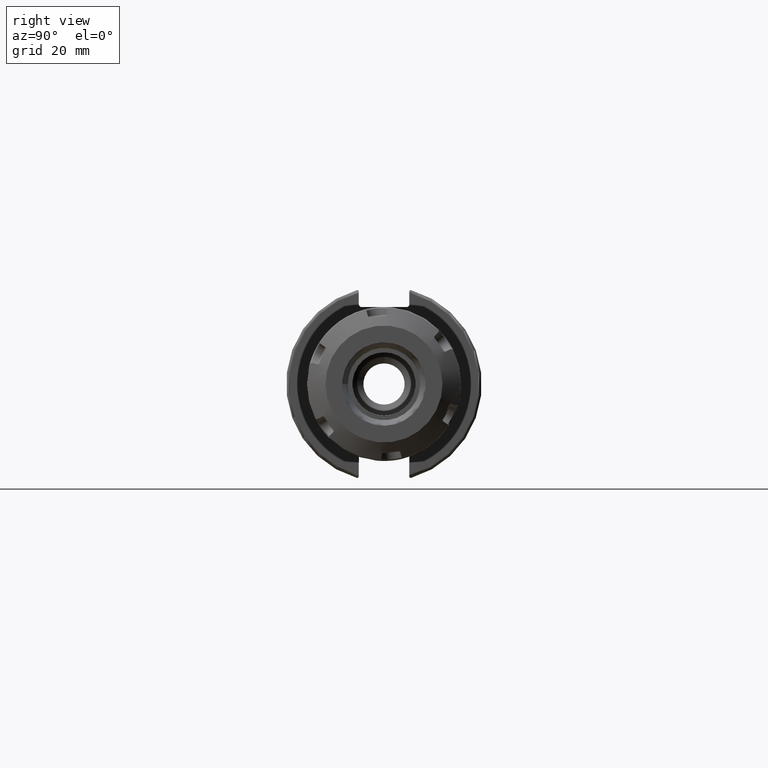
[diagram: clean part render]
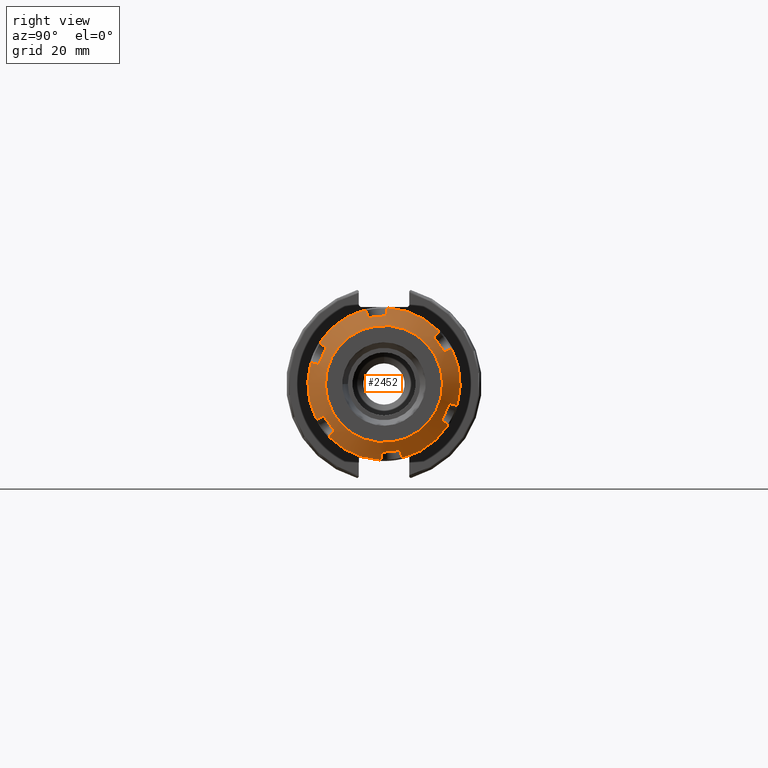
[diagram: same view with one face highlighted and labeled with its STEP entity id]
A machine part, right view. The second image highlights one B-rep face of the part: STEP entity #2452.
In plain terms, the highlighted conical surface has half-angle 60 deg.
Its self-contained STEP definition (entity closure, byte-faithful):
#133=(
BOUNDED_CURVE()
B_SPLINE_CURVE(2,(#4017,#4018,#4019),.UNSPECIFIED.,.F.,.F.)
B_SPLINE_CURVE_WITH_KNOTS((3,3),(3.51476215686957,4.31734241493005),
 .UNSPECIFIED.)
CURVE()
GEOMETRIC_REPRESENTATION_ITEM()
RATIONAL_B_SPLINE_CURVE((1.47709269009182,1.48721867500282,1.47709269009183))
REPRESENTATION_ITEM('')
);
#134=(
BOUNDED_CURVE()
B_SPLINE_CURVE(2,(#4071,#4072,#4073),.UNSPECIFIED.,.F.,.F.)
B_SPLINE_CURVE_WITH_KNOTS((3,3),(3.51476215686976,4.31734241493044),
 .UNSPECIFIED.)
CURVE()
GEOMETRIC_REPRESENTATION_ITEM()
RATIONAL_B_SPLINE_CURVE((1.47709269009192,1.48721867500291,1.47709269009192))
REPRESENTATION_ITEM('')
);
#135=(
BOUNDED_CURVE()
B_SPLINE_CURVE(2,(#4125,#4126,#4127),.UNSPECIFIED.,.F.,.F.)
B_SPLINE_CURVE_WITH_KNOTS((3,3),(3.51476215686984,4.31734241493033),
 .UNSPECIFIED.)
CURVE()
GEOMETRIC_REPRESENTATION_ITEM()
RATIONAL_B_SPLINE_CURVE((1.47709269009183,1.48721867500282,1.47709269009182))
REPRESENTATION_ITEM('')
);
#136=(
BOUNDED_CURVE()
B_SPLINE_CURVE(2,(#4179,#4180,#4181),.UNSPECIFIED.,.F.,.F.)
B_SPLINE_CURVE_WITH_KNOTS((3,3),(3.51476215686957,4.31734241493005),
 .UNSPECIFIED.)
CURVE()
GEOMETRIC_REPRESENTATION_ITEM()
RATIONAL_B_SPLINE_CURVE((1.47709269009182,1.48721867500282,1.47709269009183))
REPRESENTATION_ITEM('')
);
#137=(
BOUNDED_CURVE()
B_SPLINE_CURVE(2,(#4233,#4234,#4235),.UNSPECIFIED.,.F.,.F.)
B_SPLINE_CURVE_WITH_KNOTS((3,3),(3.51476215686976,4.31734241493044),
 .UNSPECIFIED.)
CURVE()
GEOMETRIC_REPRESENTATION_ITEM()
RATIONAL_B_SPLINE_CURVE((1.47709269009192,1.48721867500291,1.47709269009192))
REPRESENTATION_ITEM('')
);
#138=(
BOUNDED_CURVE()
B_SPLINE_CURVE(2,(#4287,#4288,#4289),.UNSPECIFIED.,.F.,.F.)
B_SPLINE_CURVE_WITH_KNOTS((3,3),(3.51476215686984,4.31734241493033),
 .UNSPECIFIED.)
CURVE()
GEOMETRIC_REPRESENTATION_ITEM()
RATIONAL_B_SPLINE_CURVE((1.47709269009183,1.48721867500282,1.47709269009182))
REPRESENTATION_ITEM('')
);
#155=B_SPLINE_CURVE_WITH_KNOTS('',3,(#3993,#3994,#3995,#3996,#3997),
 .UNSPECIFIED.,.F.,.F.,(4,1,4),(0.,0.5,1.),.UNSPECIFIED.);
#156=B_SPLINE_CURVE_WITH_KNOTS('',3,(#3999,#4000,#4001,#4002,#4003,#4004),
 .UNSPECIFIED.,.F.,.F.,(4,1,1,4),(0.,0.3333333333333,0.6666666666667,1.),
 .UNSPECIFIED.);
#157=B_SPLINE_CURVE_WITH_KNOTS('',3,(#4006,#4007,#4008,#4009,#4010,#4011,
#4012,#4013,#4014,#4015),.UNSPECIFIED.,.F.,.F.,(4,2,2,2,4),(0.0021929011140548,
0.0216290017748505,0.0432580035497009,0.0616866380642235,0.0744888904768261),
 .UNSPECIFIED.);
#158=B_SPLINE_CURVE_WITH_KNOTS('',3,(#4021,#4022,#4023,#4024,#4025,#4026,
#4027,#4028,#4029,#4030),.UNSPECIFIED.,.F.,.F.,(4,2,2,2,4),(0.250635890627103,
0.263438143039404,0.281866777553927,0.303495779328777,0.322931879990271),
 .UNSPECIFIED.);
#159=B_SPLINE_CURVE_WITH_KNOTS('',3,(#4032,#4033,#4034,#4035,#4036,#4037),
 .UNSPECIFIED.,.F.,.F.,(4,1,1,4),(0.,0.3333333333333,0.6666666666667,1.),
 .UNSPECIFIED.);
#160=B_SPLINE_CURVE_WITH_KNOTS('',3,(#4039,#4040,#4041,#4042,#4043),
 .UNSPECIFIED.,.F.,.F.,(4,1,4),(0.,0.5,1.),.UNSPECIFIED.);
#161=B_SPLINE_CURVE_WITH_KNOTS('',3,(#4047,#4048,#4049,#4050,#4051),
 .UNSPECIFIED.,.F.,.F.,(4,1,4),(0.,0.5,1.),.UNSPECIFIED.);
#162=B_SPLINE_CURVE_WITH_KNOTS('',3,(#4053,#4054,#4055,#4056,#4057,#4058),
 .UNSPECIFIED.,.F.,.F.,(4,1,1,4),(0.,0.3333333333333,0.6666666666667,1.),
 .UNSPECIFIED.);
#163=B_SPLINE_CURVE_WITH_KNOTS('',3,(#4060,#4061,#4062,#4063,#4064,#4065,
#4066,#4067,#4068,#4069),.UNSPECIFIED.,.F.,.F.,(4,2,2,2,4),(0.00219290111341628,
0.0216290017748504,0.0432580035497007,0.0616866380642232,0.074488890476436),
 .UNSPECIFIED.);
#164=B_SPLINE_CURVE_WITH_KNOTS('',3,(#4075,#4076,#4077,#4078,#4079,#4080,
#4081,#4082,#4083,#4084),.UNSPECIFIED.,.F.,.F.,(4,2,2,2,4),(0.250635890627191,
0.263438143039404,0.281866777553927,0.303495779328777,0.32293187999021),
 .UNSPECIFIED.);
#165=B_SPLINE_CURVE_WITH_KNOTS('',3,(#4086,#4087,#4088,#4089,#4090,#4091),
 .UNSPECIFIED.,.F.,.F.,(4,1,1,4),(0.,0.3333333333333,0.6666666666667,1.),
 .UNSPECIFIED.);
#166=B_SPLINE_CURVE_WITH_KNOTS('',3,(#4093,#4094,#4095,#4096,#4097),
 .UNSPECIFIED.,.F.,.F.,(4,1,4),(0.,0.5,1.),.UNSPECIFIED.);
#167=B_SPLINE_CURVE_WITH_KNOTS('',3,(#4101,#4102,#4103,#4104,#4105),
 .UNSPECIFIED.,.F.,.F.,(4,1,4),(0.,0.5,1.),.UNSPECIFIED.);
#168=B_SPLINE_CURVE_WITH_KNOTS('',3,(#4107,#4108,#4109,#4110,#4111,#4112),
 .UNSPECIFIED.,.F.,.F.,(4,1,1,4),(0.,0.3333333333333,0.6666666666667,1.),
 .UNSPECIFIED.);
#169=B_SPLINE_CURVE_WITH_KNOTS('',3,(#4114,#4115,#4116,#4117,#4118,#4119,
#4120,#4121,#4122,#4123),.UNSPECIFIED.,.F.,.F.,(4,2,2,2,4),(0.00219290111335722,
0.0216290017748503,0.0432580035497006,0.0616866380642232,0.0744888904765242),
 .UNSPECIFIED.);
#170=B_SPLINE_CURVE_WITH_KNOTS('',3,(#4129,#4130,#4131,#4132,#4133,#4134,
#4135,#4136,#4137,#4138),.UNSPECIFIED.,.F.,.F.,(4,2,2,2,4),(0.250635890626801,
0.263438143039404,0.281866777553926,0.303495779328777,0.322931879989572),
 .UNSPECIFIED.);
#171=B_SPLINE_CURVE_WITH_KNOTS('',3,(#4140,#4141,#4142,#4143,#4144,#4145),
 .UNSPECIFIED.,.F.,.F.,(4,1,1,4),(0.,0.3333333333333,0.6666666666667,1.),
 .UNSPECIFIED.);
#172=B_SPLINE_CURVE_WITH_KNOTS('',3,(#4147,#4148,#4149,#4150,#4151),
 .UNSPECIFIED.,.F.,.F.,(4,1,4),(0.,0.5,1.),.UNSPECIFIED.);
#173=B_SPLINE_CURVE_WITH_KNOTS('',3,(#4155,#4156,#4157,#4158,#4159),
 .UNSPECIFIED.,.F.,.F.,(4,1,4),(0.,0.5,1.),.UNSPECIFIED.);
#174=B_SPLINE_CURVE_WITH_KNOTS('',3,(#4161,#4162,#4163,#4164,#4165,#4166),
 .UNSPECIFIED.,.F.,.F.,(4,1,1,4),(0.,0.3333333333333,0.6666666666667,1.),
 .UNSPECIFIED.);
#175=B_SPLINE_CURVE_WITH_KNOTS('',3,(#4168,#4169,#4170,#4171,#4172,#4173,
#4174,#4175,#4176,#4177),.UNSPECIFIED.,.F.,.F.,(4,2,2,2,4),(0.0021929011140548,
0.0216290017748505,0.0432580035497009,0.0616866380642235,0.0744888904768256),
 .UNSPECIFIED.);
#176=B_SPLINE_CURVE_WITH_KNOTS('',3,(#4183,#4184,#4185,#4186,#4187,#4188,
#4189,#4190,#4191,#4192),.UNSPECIFIED.,.F.,.F.,(4,2,2,2,4),(0.250635890627103,
0.263438143039404,0.281866777553927,0.303495779328777,0.322931879990271),
 .UNSPECIFIED.);
#177=B_SPLINE_CURVE_WITH_KNOTS('',3,(#4194,#4195,#4196,#4197,#4198,#4199),
 .UNSPECIFIED.,.F.,.F.,(4,1,1,4),(0.,0.3333333333333,0.6666666666667,1.),
 .UNSPECIFIED.);
#178=B_SPLINE_CURVE_WITH_KNOTS('',3,(#4201,#4202,#4203,#4204,#4205),
 .UNSPECIFIED.,.F.,.F.,(4,1,4),(0.,0.5,1.),.UNSPECIFIED.);
#179=B_SPLINE_CURVE_WITH_KNOTS('',3,(#4209,#4210,#4211,#4212,#4213),
 .UNSPECIFIED.,.F.,.F.,(4,1,4),(0.,0.5,1.),.UNSPECIFIED.);
#180=B_SPLINE_CURVE_WITH_KNOTS('',3,(#4215,#4216,#4217,#4218,#4219,#4220),
 .UNSPECIFIED.,.F.,.F.,(4,1,1,4),(0.,0.3333333333333,0.6666666666667,1.),
 .UNSPECIFIED.);
#181=B_SPLINE_CURVE_WITH_KNOTS('',3,(#4222,#4223,#4224,#4225,#4226,#4227,
#4228,#4229,#4230,#4231),.UNSPECIFIED.,.F.,.F.,(4,2,2,2,4),(0.00219290111341628,
0.0216290017748504,0.0432580035497007,0.0616866380642232,0.074488890476436),
 .UNSPECIFIED.);
#182=B_SPLINE_CURVE_WITH_KNOTS('',3,(#4237,#4238,#4239,#4240,#4241,#4242,
#4243,#4244,#4245,#4246),.UNSPECIFIED.,.F.,.F.,(4,2,2,2,4),(0.250635890627191,
0.263438143039404,0.281866777553927,0.303495779328777,0.32293187999021),
 .UNSPECIFIED.);
#183=B_SPLINE_CURVE_WITH_KNOTS('',3,(#4248,#4249,#4250,#4251,#4252,#4253),
 .UNSPECIFIED.,.F.,.F.,(4,1,1,4),(0.,0.3333333333333,0.6666666666667,1.),
 .UNSPECIFIED.);
#184=B_SPLINE_CURVE_WITH_KNOTS('',3,(#4255,#4256,#4257,#4258,#4259),
 .UNSPECIFIED.,.F.,.F.,(4,1,4),(0.,0.5,1.),.UNSPECIFIED.);
#185=B_SPLINE_CURVE_WITH_KNOTS('',3,(#4263,#4264,#4265,#4266,#4267),
 .UNSPECIFIED.,.F.,.F.,(4,1,4),(0.,0.5,1.),.UNSPECIFIED.);
#186=B_SPLINE_CURVE_WITH_KNOTS('',3,(#4269,#4270,#4271,#4272,#4273,#4274),
 .UNSPECIFIED.,.F.,.F.,(4,1,1,4),(0.,0.3333333333333,0.6666666666667,1.),
 .UNSPECIFIED.);
#187=B_SPLINE_CURVE_WITH_KNOTS('',3,(#4276,#4277,#4278,#4279,#4280,#4281,
#4282,#4283,#4284,#4285),.UNSPECIFIED.,.F.,.F.,(4,2,2,2,4),(0.00219290111335722,
0.0216290017748503,0.0432580035497006,0.0616866380642232,0.0744888904765241),
 .UNSPECIFIED.);
#188=B_SPLINE_CURVE_WITH_KNOTS('',3,(#4291,#4292,#4293,#4294,#4295,#4296,
#4297,#4298,#4299,#4300),.UNSPECIFIED.,.F.,.F.,(4,2,2,2,4),(0.250635890626801,
0.263438143039404,0.281866777553926,0.303495779328777,0.322931879989573),
 .UNSPECIFIED.);
#189=B_SPLINE_CURVE_WITH_KNOTS('',3,(#4302,#4303,#4304,#4305,#4306,#4307),
 .UNSPECIFIED.,.F.,.F.,(4,1,1,4),(0.,0.3333333333333,0.6666666666667,1.),
 .UNSPECIFIED.);
#190=B_SPLINE_CURVE_WITH_KNOTS('',3,(#4309,#4310,#4311,#4312,#4313),
 .UNSPECIFIED.,.F.,.F.,(4,1,4),(0.,0.5,1.),.UNSPECIFIED.);
#419=FACE_OUTER_BOUND('',#576,.T.);
#576=EDGE_LOOP('',(#1995,#1996,#1997,#1998,#1999,#2000,#2001,#2002,#2003,
#2004,#2005,#2006,#2007,#2008,#2009,#2010,#2011,#2012,#2013,#2014,#2015,
#2016,#2017,#2018,#2019,#2020,#2021,#2022,#2023,#2024,#2025,#2026,#2027,
#2028,#2029,#2030,#2031,#2032,#2033,#2034,#2035,#2036,#2037,#2038,#2039,
#2040,#2041,#2042,#2043,#2044,#2045,#2046));
#724=LINE('',#4315,#878);
#878=VECTOR('',#3222,21.87499999999);
#1018=CIRCLE('',#2736,19.);
#1019=CIRCLE('',#2738,24.75);
#1020=CIRCLE('',#2739,24.75);
#1021=CIRCLE('',#2740,24.75);
#1022=CIRCLE('',#2741,24.75);
#1023=CIRCLE('',#2742,24.75);
#1024=CIRCLE('',#2743,24.75);
#1025=CIRCLE('',#2744,24.75);
#1174=VERTEX_POINT('',#3986);
#1175=VERTEX_POINT('',#3989);
#1176=VERTEX_POINT('',#3990);
#1177=VERTEX_POINT('',#3992);
#1178=VERTEX_POINT('',#3998);
#1179=VERTEX_POINT('',#4005);
#1180=VERTEX_POINT('',#4016);
#1181=VERTEX_POINT('',#4020);
#1182=VERTEX_POINT('',#4031);
#1183=VERTEX_POINT('',#4038);
#1184=VERTEX_POINT('',#4044);
#1185=VERTEX_POINT('',#4046);
#1186=VERTEX_POINT('',#4052);
#1187=VERTEX_POINT('',#4059);
#1188=VERTEX_POINT('',#4070);
#1189=VERTEX_POINT('',#4074);
#1190=VERTEX_POINT('',#4085);
#1191=VERTEX_POINT('',#4092);
#1192=VERTEX_POINT('',#4098);
#1193=VERTEX_POINT('',#4100);
#1194=VERTEX_POINT('',#4106);
#1195=VERTEX_POINT('',#4113);
#1196=VERTEX_POINT('',#4124);
#1197=VERTEX_POINT('',#4128);
#1198=VERTEX_POINT('',#4139);
#1199=VERTEX_POINT('',#4146);
#1200=VERTEX_POINT('',#4152);
#1201=VERTEX_POINT('',#4154);
#1202=VERTEX_POINT('',#4160);
#1203=VERTEX_POINT('',#4167);
#1204=VERTEX_POINT('',#4178);
#1205=VERTEX_POINT('',#4182);
#1206=VERTEX_POINT('',#4193);
#1207=VERTEX_POINT('',#4200);
#1208=VERTEX_POINT('',#4206);
#1209=VERTEX_POINT('',#4208);
#1210=VERTEX_POINT('',#4214);
#1211=VERTEX_POINT('',#4221);
#1212=VERTEX_POINT('',#4232);
#1213=VERTEX_POINT('',#4236);
#1214=VERTEX_POINT('',#4247);
#1215=VERTEX_POINT('',#4254);
#1216=VERTEX_POINT('',#4260);
#1217=VERTEX_POINT('',#4262);
#1218=VERTEX_POINT('',#4268);
#1219=VERTEX_POINT('',#4275);
#1220=VERTEX_POINT('',#4286);
#1221=VERTEX_POINT('',#4290);
#1222=VERTEX_POINT('',#4301);
#1223=VERTEX_POINT('',#4308);
#1462=EDGE_CURVE('',#1174,#1174,#1018,.T.);
#1463=EDGE_CURVE('',#1175,#1176,#1019,.T.);
#1464=EDGE_CURVE('',#1175,#1177,#155,.T.);
#1465=EDGE_CURVE('',#1178,#1177,#156,.T.);
#1466=EDGE_CURVE('',#1178,#1179,#157,.T.);
#1467=EDGE_CURVE('',#1180,#1179,#133,.T.);
#1468=EDGE_CURVE('',#1180,#1181,#158,.T.);
#1469=EDGE_CURVE('',#1182,#1181,#159,.T.);
#1470=EDGE_CURVE('',#1182,#1183,#160,.T.);
#1471=EDGE_CURVE('',#1183,#1184,#1020,.T.);
#1472=EDGE_CURVE('',#1184,#1185,#161,.T.);
#1473=EDGE_CURVE('',#1186,#1185,#162,.T.);
#1474=EDGE_CURVE('',#1186,#1187,#163,.T.);
#1475=EDGE_CURVE('',#1188,#1187,#134,.T.);
#1476=EDGE_CURVE('',#1188,#1189,#164,.T.);
#1477=EDGE_CURVE('',#1190,#1189,#165,.T.);
#1478=EDGE_CURVE('',#1190,#1191,#166,.T.);
#1479=EDGE_CURVE('',#1191,#1192,#1021,.T.);
#1480=EDGE_CURVE('',#1192,#1193,#167,.T.);
#1481=EDGE_CURVE('',#1194,#1193,#168,.T.);
#1482=EDGE_CURVE('',#1194,#1195,#169,.T.);
#1483=EDGE_CURVE('',#1196,#1195,#135,.T.);
#1484=EDGE_CURVE('',#1196,#1197,#170,.T.);
#1485=EDGE_CURVE('',#1198,#1197,#171,.T.);
#1486=EDGE_CURVE('',#1198,#1199,#172,.T.);
#1487=EDGE_CURVE('',#1200,#1199,#1022,.T.);
#1488=EDGE_CURVE('',#1200,#1201,#173,.T.);
#1489=EDGE_CURVE('',#1202,#1201,#174,.T.);
#1490=EDGE_CURVE('',#1202,#1203,#175,.T.);
#1491=EDGE_CURVE('',#1204,#1203,#136,.T.);
#1492=EDGE_CURVE('',#1204,#1205,#176,.T.);
#1493=EDGE_CURVE('',#1206,#1205,#177,.T.);
#1494=EDGE_CURVE('',#1206,#1207,#178,.T.);
#1495=EDGE_CURVE('',#1207,#1208,#1023,.T.);
#1496=EDGE_CURVE('',#1208,#1209,#179,.T.);
#1497=EDGE_CURVE('',#1210,#1209,#180,.T.);
#1498=EDGE_CURVE('',#1210,#1211,#181,.T.);
#1499=EDGE_CURVE('',#1212,#1211,#137,.T.);
#1500=EDGE_CURVE('',#1212,#1213,#182,.T.);
#1501=EDGE_CURVE('',#1214,#1213,#183,.T.);
#1502=EDGE_CURVE('',#1214,#1215,#184,.T.);
#1503=EDGE_CURVE('',#1215,#1216,#1024,.T.);
#1504=EDGE_CURVE('',#1216,#1217,#185,.T.);
#1505=EDGE_CURVE('',#1218,#1217,#186,.T.);
#1506=EDGE_CURVE('',#1218,#1219,#187,.T.);
#1507=EDGE_CURVE('',#1220,#1219,#138,.T.);
#1508=EDGE_CURVE('',#1220,#1221,#188,.T.);
#1509=EDGE_CURVE('',#1222,#1221,#189,.T.);
#1510=EDGE_CURVE('',#1222,#1223,#190,.T.);
#1511=EDGE_CURVE('',#1176,#1223,#1025,.T.);
#1512=EDGE_CURVE('',#1176,#1174,#724,.T.);
#1995=ORIENTED_EDGE('',*,*,#1463,.F.);
#1996=ORIENTED_EDGE('',*,*,#1464,.T.);
#1997=ORIENTED_EDGE('',*,*,#1465,.F.);
#1998=ORIENTED_EDGE('',*,*,#1466,.T.);
#1999=ORIENTED_EDGE('',*,*,#1467,.F.);
#2000=ORIENTED_EDGE('',*,*,#1468,.T.);
#2001=ORIENTED_EDGE('',*,*,#1469,.F.);
#2002=ORIENTED_EDGE('',*,*,#1470,.T.);
#2003=ORIENTED_EDGE('',*,*,#1471,.T.);
#2004=ORIENTED_EDGE('',*,*,#1472,.T.);
#2005=ORIENTED_EDGE('',*,*,#1473,.F.);
#2006=ORIENTED_EDGE('',*,*,#1474,.T.);
#2007=ORIENTED_EDGE('',*,*,#1475,.F.);
#2008=ORIENTED_EDGE('',*,*,#1476,.T.);
#2009=ORIENTED_EDGE('',*,*,#1477,.F.);
#2010=ORIENTED_EDGE('',*,*,#1478,.T.);
#2011=ORIENTED_EDGE('',*,*,#1479,.T.);
#2012=ORIENTED_EDGE('',*,*,#1480,.T.);
#2013=ORIENTED_EDGE('',*,*,#1481,.F.);
#2014=ORIENTED_EDGE('',*,*,#1482,.T.);
#2015=ORIENTED_EDGE('',*,*,#1483,.F.);
#2016=ORIENTED_EDGE('',*,*,#1484,.T.);
#2017=ORIENTED_EDGE('',*,*,#1485,.F.);
#2018=ORIENTED_EDGE('',*,*,#1486,.T.);
#2019=ORIENTED_EDGE('',*,*,#1487,.F.);
#2020=ORIENTED_EDGE('',*,*,#1488,.T.);
#2021=ORIENTED_EDGE('',*,*,#1489,.F.);
#2022=ORIENTED_EDGE('',*,*,#1490,.T.);
#2023=ORIENTED_EDGE('',*,*,#1491,.F.);
#2024=ORIENTED_EDGE('',*,*,#1492,.T.);
#2025=ORIENTED_EDGE('',*,*,#1493,.F.);
#2026=ORIENTED_EDGE('',*,*,#1494,.T.);
#2027=ORIENTED_EDGE('',*,*,#1495,.T.);
#2028=ORIENTED_EDGE('',*,*,#1496,.T.);
#2029=ORIENTED_EDGE('',*,*,#1497,.F.);
#2030=ORIENTED_EDGE('',*,*,#1498,.T.);
#2031=ORIENTED_EDGE('',*,*,#1499,.F.);
#2032=ORIENTED_EDGE('',*,*,#1500,.T.);
#2033=ORIENTED_EDGE('',*,*,#1501,.F.);
#2034=ORIENTED_EDGE('',*,*,#1502,.T.);
#2035=ORIENTED_EDGE('',*,*,#1503,.T.);
#2036=ORIENTED_EDGE('',*,*,#1504,.T.);
#2037=ORIENTED_EDGE('',*,*,#1505,.F.);
#2038=ORIENTED_EDGE('',*,*,#1506,.T.);
#2039=ORIENTED_EDGE('',*,*,#1507,.F.);
#2040=ORIENTED_EDGE('',*,*,#1508,.T.);
#2041=ORIENTED_EDGE('',*,*,#1509,.F.);
#2042=ORIENTED_EDGE('',*,*,#1510,.T.);
#2043=ORIENTED_EDGE('',*,*,#1511,.F.);
#2044=ORIENTED_EDGE('',*,*,#1512,.T.);
#2045=ORIENTED_EDGE('',*,*,#1462,.F.);
#2046=ORIENTED_EDGE('',*,*,#1512,.F.);
#2370=CONICAL_SURFACE('',#2737,21.87499999999,1.0471975511966);
#2452=ADVANCED_FACE('',(#419),#2370,.T.);
#2736=AXIS2_PLACEMENT_3D('',#3987,#3204,#3205);
#2737=AXIS2_PLACEMENT_3D('',#3988,#3206,#3207);
#2738=AXIS2_PLACEMENT_3D('',#3991,#3208,#3209);
#2739=AXIS2_PLACEMENT_3D('',#4045,#3210,#3211);
#2740=AXIS2_PLACEMENT_3D('',#4099,#3212,#3213);
#2741=AXIS2_PLACEMENT_3D('',#4153,#3214,#3215);
#2742=AXIS2_PLACEMENT_3D('',#4207,#3216,#3217);
#2743=AXIS2_PLACEMENT_3D('',#4261,#3218,#3219);
#2744=AXIS2_PLACEMENT_3D('',#4314,#3220,#3221);
#3204=DIRECTION('center_axis',(1.,0.,0.));
#3205=DIRECTION('ref_axis',(0.,0.,1.));
#3206=DIRECTION('center_axis',(-1.,0.,0.));
#3207=DIRECTION('ref_axis',(0.,0.,-1.));
#3208=DIRECTION('center_axis',(-1.,0.,0.));
#3209=DIRECTION('ref_axis',(0.,-0.365626291910614,0.930761738934135));
#3210=DIRECTION('center_axis',(1.,0.,0.));
#3211=DIRECTION('ref_axis',(0.,-0.623250164832195,0.782022526553194));
#3212=DIRECTION('center_axis',(1.,0.,0.));
#3213=DIRECTION('ref_axis',(0.,-0.988876456742842,-0.148739212381006));
#3214=DIRECTION('center_axis',(-1.,0.,0.));
#3215=DIRECTION('ref_axis',(0.,0.365626291910614,-0.930761738934135));
#3216=DIRECTION('center_axis',(1.,0.,0.));
#3217=DIRECTION('ref_axis',(0.,0.623250164832195,-0.782022526553194));
#3218=DIRECTION('center_axis',(1.,0.,0.));
#3219=DIRECTION('ref_axis',(0.,0.988876456742842,0.148739212381006));
#3220=DIRECTION('center_axis',(-1.,0.,0.));
#3221=DIRECTION('ref_axis',(0.,-0.365626291910614,0.930761738934135));
#3222=DIRECTION('',(0.5,-1.06057523872491E-16,-0.866025403784439));
#3986=CARTESIAN_POINT('',(11.25,0.,19.));
#3987=CARTESIAN_POINT('Origin',(11.25,0.,0.));
#3988=CARTESIAN_POINT('Origin',(9.590117976086,0.,0.));
#3989=CARTESIAN_POINT('',(7.93023595216,-9.049250724788,23.03635303862));
#3990=CARTESIAN_POINT('',(7.9302359521581,3.03100082789011E-15,24.7500000000034));
#3991=CARTESIAN_POINT('Origin',(7.93023595216,0.,0.));
#3992=CARTESIAN_POINT('',(8.067319186688,-9.192179591027,22.72376885589));
#3993=CARTESIAN_POINT('Ctrl Pts',(7.93023595216,-9.049250724788,23.03635303862));
#3994=CARTESIAN_POINT('Ctrl Pts',(7.953316779699,-9.073189986037,22.98399808325));
#3995=CARTESIAN_POINT('Ctrl Pts',(7.999244791068,-9.12095072866,22.87954575608));
#3996=CARTESIAN_POINT('Ctrl Pts',(8.04470557675,-9.168475901167,22.77560861869));
#3997=CARTESIAN_POINT('Ctrl Pts',(8.067319186688,-9.192179591027,22.72376885589));
#3998=CARTESIAN_POINT('',(9.158352391105,-8.545418276707,20.94680674902));
#3999=CARTESIAN_POINT('Ctrl Pts',(9.158352391105,-8.545418276707,20.94680674902));
#4000=CARTESIAN_POINT('Ctrl Pts',(9.038440212986,-8.616505886774,21.14211835248));
#4001=CARTESIAN_POINT('Ctrl Pts',(8.797739699423,-8.759197649026,21.53416074721));
#4002=CARTESIAN_POINT('Ctrl Pts',(8.434050555279,-8.974791288436,22.12649940327));
#4003=CARTESIAN_POINT('Ctrl Pts',(8.189853664668,-9.119545298481,22.52420777724));
#4004=CARTESIAN_POINT('Ctrl Pts',(8.067319186688,-9.192179591027,22.72376885589));
#4005=CARTESIAN_POINT('',(9.430874573907,-8.7652645871,20.34278397546));
#4006=CARTESIAN_POINT('Ctrl Pts',(9.15835239110429,-8.54541827670599,20.9468067490199));
#4007=CARTESIAN_POINT('Ctrl Pts',(9.19119712671738,-8.52594691195692,20.8933096140449));
#4008=CARTESIAN_POINT('Ctrl Pts',(9.22581604899738,-8.51482688393214,20.8330947998305));
#4009=CARTESIAN_POINT('Ctrl Pts',(9.29445479801047,-8.5157805992649,20.7042164191707));
#4010=CARTESIAN_POINT('Ctrl Pts',(9.3279557682139,-8.53075238997886,20.6353180550556));
#4011=CARTESIAN_POINT('Ctrl Pts',(9.37736091771003,-8.58080945742881,20.5218170940594));
#4012=CARTESIAN_POINT('Ctrl Pts',(9.39793108518539,-8.61569316863444,20.4685883608895));
#4013=CARTESIAN_POINT('Ctrl Pts',(9.42143915916752,-8.69153237608418,20.3922026331622));
#4014=CARTESIAN_POINT('Ctrl Pts',(9.42792730040714,-8.72731509387336,20.3646941255974));
#4015=CARTESIAN_POINT('Ctrl Pts',(9.43087457390542,-8.76526458710346,20.3427839754658));
#4016=CARTESIAN_POINT('',(9.430874573907,-13.2347354129,17.76233379105));
#4017=CARTESIAN_POINT('Ctrl Pts',(9.43087457390804,-13.2347354128814,17.7623337910653));
#4018=CARTESIAN_POINT('Ctrl Pts',(9.60443094839101,-11.0000000000022,19.0525588832588));
#4019=CARTESIAN_POINT('Ctrl Pts',(9.43087457390816,-8.76526458712295,20.3427839754522));
#4020=CARTESIAN_POINT('',(9.158352391105,-13.86775763446,17.8739526881));
#4021=CARTESIAN_POINT('Ctrl Pts',(9.43087457390979,-13.2347354128992,17.7623337910482));
#4022=CARTESIAN_POINT('Ctrl Pts',(9.42792730041141,-13.2726849061282,17.7404236409168));
#4023=CARTESIAN_POINT('Ctrl Pts',(9.42143915917186,-13.3143993313932,17.7231891520779));
#4024=CARTESIAN_POINT('Ctrl Pts',(9.39793108518996,-13.4184709158154,17.6957033356874));
#4025=CARTESIAN_POINT('Ctrl Pts',(9.37736091771461,-13.4820102065547,17.69210752219));
#4026=CARTESIAN_POINT('Ctrl Pts',(9.32795576821848,-13.6053334558563,17.7055073106375));
#4027=CARTESIAN_POINT('Ctrl Pts',(9.29445479801504,-13.6724870848161,17.7269905415966));
#4028=CARTESIAN_POINT('Ctrl Pts',(9.22581604900079,-13.7845758941345,17.7906037902214));
#4029=CARTESIAN_POINT('Ctrl Pts',(9.19119712671946,-13.8311634389173,17.8303414240907));
#4030=CARTESIAN_POINT('Ctrl Pts',(9.15835239110532,-13.8677576344614,17.873952688099));
#4031=CARTESIAN_POINT('',(8.067319186688,-15.08327130341,19.32254546992));
#4032=CARTESIAN_POINT('Ctrl Pts',(8.067319186688,-15.08327130341,19.32254546992));
#4033=CARTESIAN_POINT('Ctrl Pts',(8.189820037069,-14.94680094833,19.15990643397));
#4034=CARTESIAN_POINT('Ctrl Pts',(8.433972092865,-14.67480234824,18.83575112514));
#4035=CARTESIAN_POINT('Ctrl Pts',(8.797661267953,-14.26961881374,18.35287219224));
#4036=CARTESIAN_POINT('Ctrl Pts',(9.038406600502,-14.00139608927,18.03321679673));
#4037=CARTESIAN_POINT('Ctrl Pts',(9.158352391105,-13.86775763446,17.8739526881));
#4038=CARTESIAN_POINT('',(7.93023595216,-15.4254415796,19.35505753219));
#4039=CARTESIAN_POINT('Ctrl Pts',(8.067319186688,-15.08327130341,19.32254546992));
#4040=CARTESIAN_POINT('Ctrl Pts',(8.044725340155,-15.13996810573,19.32793264145));
#4041=CARTESIAN_POINT('Ctrl Pts',(7.99928450041,-15.25369337115,19.33873849797));
#4042=CARTESIAN_POINT('Ctrl Pts',(7.95333672401,-15.36808170532,19.34960735743));
#4043=CARTESIAN_POINT('Ctrl Pts',(7.93023595216,-15.4254415796,19.35505753219));
#4044=CARTESIAN_POINT('',(7.93023595216,-24.47469230439,3.681295506429));
#4045=CARTESIAN_POINT('Origin',(7.93023595216,0.,0.));
#4046=CARTESIAN_POINT('',(8.067319186688,-24.27545089444,3.401223385967));
#4047=CARTESIAN_POINT('Ctrl Pts',(7.93023595216,-24.47469230439,3.681295506429));
#4048=CARTESIAN_POINT('Ctrl Pts',(7.953305715115,-24.44133721122,3.634408508021));
#4049=CARTESIAN_POINT('Ctrl Pts',(7.999222761311,-24.37477523445,3.540842848246));
#4050=CARTESIAN_POINT('Ctrl Pts',(8.044694612529,-24.30850962179,3.447693785227));
#4051=CARTESIAN_POINT('Ctrl Pts',(8.067319186688,-24.27545089444,3.401223385967));
#4052=CARTESIAN_POINT('',(9.158352391105,-22.41317591117,3.072854060917));
#4053=CARTESIAN_POINT('Ctrl Pts',(9.158352391105,-22.41317591117,3.072854060917));
#4054=CARTESIAN_POINT('Ctrl Pts',(9.038441052253,-22.61786309384,3.108945933827));
#4055=CARTESIAN_POINT('Ctrl Pts',(8.797741657643,-23.02872573823,3.1813921034));
#4056=CARTESIAN_POINT('Ctrl Pts',(8.434052503311,-23.64950289927,3.290851865898));
#4057=CARTESIAN_POINT('Ctrl Pts',(8.189854499506,-24.06630735955,3.364345737925));
#4058=CARTESIAN_POINT('Ctrl Pts',(8.067319186688,-24.27545089444,3.401223385967));
#4059=CARTESIAN_POINT('',(9.430874573907,-22.,2.580450184411));
#4060=CARTESIAN_POINT('Ctrl Pts',(9.15835239110354,-22.413175911169,3.07285406091755));
#4061=CARTESIAN_POINT('Ctrl Pts',(9.19119712671759,-22.3571103508747,3.06296818994941));
#4062=CARTESIAN_POINT('Ctrl Pts',(9.2258160489988,-22.2994027780665,3.04249100960221));
#4063=CARTESIAN_POINT('Ctrl Pts',(9.29445479801296,-22.1882676840811,2.97722587756512));
#4064=CARTESIAN_POINT('Ctrl Pts',(9.3279557682164,-22.1360858458352,2.92981074440912));
#4065=CARTESIAN_POINT('Ctrl Pts',(9.37736091771253,-22.0628196639836,2.82970957186047));
#4066=CARTESIAN_POINT('Ctrl Pts',(9.39793108518788,-22.0341640844499,2.77288502519313));
#4067=CARTESIAN_POINT('Ctrl Pts',(9.42143915916971,-22.0059317074768,2.66901348107646));
#4068=CARTESIAN_POINT('Ctrl Pts',(9.42792730040924,-22.,2.62427048467359));
#4069=CARTESIAN_POINT('Ctrl Pts',(9.43087457390764,-22.,2.58045018441104));
#4070=CARTESIAN_POINT('',(9.430874573907,-22.,-2.580450184411));
#4071=CARTESIAN_POINT('Ctrl Pts',(9.43087457390924,-22.,-2.58045018438732));
#4072=CARTESIAN_POINT('Ctrl Pts',(9.60443094839223,-22.,-7.54951656745106E-15));
#4073=CARTESIAN_POINT('Ctrl Pts',(9.43087457390924,-22.,2.58045018438731));
#4074=CARTESIAN_POINT('',(9.158352391105,-22.41317591117,-3.072854060917));
#4075=CARTESIAN_POINT('Ctrl Pts',(9.43087457390764,-22.,-2.58045018441104));
#4076=CARTESIAN_POINT('Ctrl Pts',(9.42792730040924,-22.,-2.62427048467359));
#4077=CARTESIAN_POINT('Ctrl Pts',(9.42143915916971,-22.0059317074768,-2.66901348107646));
#4078=CARTESIAN_POINT('Ctrl Pts',(9.39793108518788,-22.0341640844499,-2.77288502519313));
#4079=CARTESIAN_POINT('Ctrl Pts',(9.37736091771252,-22.0628196639836,-2.82970957186047));
#4080=CARTESIAN_POINT('Ctrl Pts',(9.32795576821639,-22.1360858458352,-2.92981074440912));
#4081=CARTESIAN_POINT('Ctrl Pts',(9.29445479801296,-22.1882676840811,-2.97722587756512));
#4082=CARTESIAN_POINT('Ctrl Pts',(9.22581604899881,-22.2994027780665,-3.04249100960221));
#4083=CARTESIAN_POINT('Ctrl Pts',(9.1911971267176,-22.3571103508747,-3.06296818994941));
#4084=CARTESIAN_POINT('Ctrl Pts',(9.15835239110354,-22.413175911169,-3.07285406091755));
#4085=CARTESIAN_POINT('',(8.067319186688,-24.27545089444,-3.401223385967));
#4086=CARTESIAN_POINT('Ctrl Pts',(8.067319186688,-24.27545089444,-3.401223385967));
#4087=CARTESIAN_POINT('Ctrl Pts',(8.189820862073,-24.06636477199,-3.364355861288));
#4088=CARTESIAN_POINT('Ctrl Pts',(8.433974017959,-23.649636862,-3.290875487143));
#4089=CARTESIAN_POINT('Ctrl Pts',(8.797663203698,-23.02885965358,-3.181415716288));
#4090=CARTESIAN_POINT('Ctrl Pts',(9.03840743014,-22.61792048637,-3.10895605368));
#4091=CARTESIAN_POINT('Ctrl Pts',(9.158352391105,-22.41317591117,-3.072854060917));
#4092=CARTESIAN_POINT('',(7.93023595216,-24.47469230439,-3.681295506429));
#4093=CARTESIAN_POINT('Ctrl Pts',(8.067319186688,-24.27545089444,-3.401223385967));
#4094=CARTESIAN_POINT('Ctrl Pts',(8.044749094101,-24.30843001404,-3.447581881225));
#4095=CARTESIAN_POINT('Ctrl Pts',(7.999332227532,-24.37461613434,-3.540619202443));
#4096=CARTESIAN_POINT('Ctrl Pts',(7.95336069539,-24.44125771876,-3.634296766081));
#4097=CARTESIAN_POINT('Ctrl Pts',(7.93023595216,-24.47469230439,-3.681295506429));
#4098=CARTESIAN_POINT('',(7.93023595216,-15.4254415796,-19.35505753219));
#4099=CARTESIAN_POINT('Origin',(7.93023595216,0.,0.));
#4100=CARTESIAN_POINT('',(8.067319186688,-15.08327130341,-19.32254546992));
#4101=CARTESIAN_POINT('Ctrl Pts',(7.93023595216,-15.4254415796,-19.35505753219));
#4102=CARTESIAN_POINT('Ctrl Pts',(7.953379780775,-15.36797479415,-19.34959719903));
#4103=CARTESIAN_POINT('Ctrl Pts',(7.999370226496,-15.25347939375,-19.33871816643));
#4104=CARTESIAN_POINT('Ctrl Pts',(8.04476800637,-15.13986103951,-19.32792246831));
#4105=CARTESIAN_POINT('Ctrl Pts',(8.067319186688,-15.08327130341,-19.32254546992));
#4106=CARTESIAN_POINT('',(9.158352391105,-13.86775763446,-17.8739526881));
#4107=CARTESIAN_POINT('Ctrl Pts',(9.158352391105,-13.86775763446,-17.8739526881));
#4108=CARTESIAN_POINT('Ctrl Pts',(9.038440632719,-14.00135817203,-18.03317160872));
#4109=CARTESIAN_POINT('Ctrl Pts',(8.797740678764,-14.26953034065,-18.3527667541));
#4110=CARTESIAN_POINT('Ctrl Pts',(8.434051529518,-14.67471385047,-18.83564565759));
#4111=CARTESIAN_POINT('Ctrl Pts',(8.189854082183,-14.94676302084,-19.15986123375));
#4112=CARTESIAN_POINT('Ctrl Pts',(8.067319186688,-15.08327130341,-19.32254546992));
#4113=CARTESIAN_POINT('',(9.430874573907,-13.2347354129,-17.76233379105));
#4114=CARTESIAN_POINT('Ctrl Pts',(9.15835239110532,-13.8677576344614,-17.873952688099));
#4115=CARTESIAN_POINT('Ctrl Pts',(9.19119712671947,-13.8311634389173,-17.8303414240907));
#4116=CARTESIAN_POINT('Ctrl Pts',(9.22581604900079,-13.7845758941345,-17.7906037902214));
#4117=CARTESIAN_POINT('Ctrl Pts',(9.29445479801504,-13.6724870848161,-17.7269905415966));
#4118=CARTESIAN_POINT('Ctrl Pts',(9.32795576821848,-13.6053334558563,-17.7055073106375));
#4119=CARTESIAN_POINT('Ctrl Pts',(9.37736091771461,-13.4820102065547,-17.69210752219));
#4120=CARTESIAN_POINT('Ctrl Pts',(9.39793108518996,-13.4184709158154,-17.6957033356874));
#4121=CARTESIAN_POINT('Ctrl Pts',(9.42143915917186,-13.3143993313932,-17.7231891520779));
#4122=CARTESIAN_POINT('Ctrl Pts',(9.42792730041141,-13.2726849061282,-17.7404236409168));
#4123=CARTESIAN_POINT('Ctrl Pts',(9.43087457390979,-13.2347354128992,-17.7623337910482));
#4124=CARTESIAN_POINT('',(9.430874573907,-8.7652645871,-20.34278397546));
#4125=CARTESIAN_POINT('Ctrl Pts',(9.43087457390816,-8.76526458712292,-20.3427839754522));
#4126=CARTESIAN_POINT('Ctrl Pts',(9.60443094839101,-11.0000000000022,-19.0525588832588));
#4127=CARTESIAN_POINT('Ctrl Pts',(9.43087457390804,-13.2347354128814,-17.7623337910653));
#4128=CARTESIAN_POINT('',(9.158352391105,-8.545418276707,-20.94680674902));
#4129=CARTESIAN_POINT('Ctrl Pts',(9.43087457390542,-8.76526458710346,-20.3427839754658));
#4130=CARTESIAN_POINT('Ctrl Pts',(9.42792730040714,-8.72731509387336,-20.3646941255974));
#4131=CARTESIAN_POINT('Ctrl Pts',(9.42143915916752,-8.69153237608418,-20.3922026331622));
#4132=CARTESIAN_POINT('Ctrl Pts',(9.39793108518539,-8.61569316863444,-20.4685883608895));
#4133=CARTESIAN_POINT('Ctrl Pts',(9.37736091771003,-8.58080945742881,-20.5218170940594));
#4134=CARTESIAN_POINT('Ctrl Pts',(9.3279557682139,-8.53075238997886,-20.6353180550556));
#4135=CARTESIAN_POINT('Ctrl Pts',(9.29445479801047,-8.5157805992649,-20.7042164191707));
#4136=CARTESIAN_POINT('Ctrl Pts',(9.22581604899738,-8.51482688393214,-20.8330947998305));
#4137=CARTESIAN_POINT('Ctrl Pts',(9.19119712671738,-8.52594691195692,-20.8933096140449));
#4138=CARTESIAN_POINT('Ctrl Pts',(9.15835239110429,-8.54541827670599,-20.9468067490199));
#4139=CARTESIAN_POINT('',(8.067319186688,-9.192179591027,-22.72376885589));
#4140=CARTESIAN_POINT('Ctrl Pts',(8.067319186688,-9.192179591027,-22.72376885589));
#4141=CARTESIAN_POINT('Ctrl Pts',(8.189820449666,-9.11956498721,-22.52426187158));
#4142=CARTESIAN_POINT('Ctrl Pts',(8.433973055635,-8.974837228894,-22.12662562364));
#4143=CARTESIAN_POINT('Ctrl Pts',(8.797662236057,-8.759243570111,-21.53428691436));
#4144=CARTESIAN_POINT('Ctrl Pts',(9.03840701542,-8.616525567308,-21.1421724243));
#4145=CARTESIAN_POINT('Ctrl Pts',(9.158352391105,-8.545418276707,-20.94680674902));
#4146=CARTESIAN_POINT('',(7.93023595216,-9.049250724788,-23.03635303862));
#4147=CARTESIAN_POINT('Ctrl Pts',(8.067319186688,-9.192179591027,-22.72376885589));
#4148=CARTESIAN_POINT('Ctrl Pts',(8.044746800182,-9.168519111758,-22.7755141175));
#4149=CARTESIAN_POINT('Ctrl Pts',(7.999327618532,-9.121037087219,-22.87935689066));
#4150=CARTESIAN_POINT('Ctrl Pts',(7.953358380474,-9.073233134049,-22.98390371893));
#4151=CARTESIAN_POINT('Ctrl Pts',(7.93023595216,-9.049250724788,-23.03635303862));
#4152=CARTESIAN_POINT('',(7.93023595216,9.049250724788,-23.03635303862));
#4153=CARTESIAN_POINT('Origin',(7.93023595216,0.,0.));
#4154=CARTESIAN_POINT('',(8.067319186688,9.192179591027,-22.72376885589));
#4155=CARTESIAN_POINT('Ctrl Pts',(7.93023595216,9.049250724788,-23.03635303862));
#4156=CARTESIAN_POINT('Ctrl Pts',(7.953364010072,9.073238973026,-22.98389094913));
#4157=CARTESIAN_POINT('Ctrl Pts',(7.999338827066,9.121048773642,-22.87933133256));
#4158=CARTESIAN_POINT('Ctrl Pts',(8.044752378717,9.168524959203,-22.77550132919));
#4159=CARTESIAN_POINT('Ctrl Pts',(8.067319186688,9.192179591027,-22.72376885589));
#4160=CARTESIAN_POINT('',(9.158352391105,8.545418276707,-20.94680674902));
#4161=CARTESIAN_POINT('Ctrl Pts',(9.158352391105,8.545418276707,-20.94680674902));
#4162=CARTESIAN_POINT('Ctrl Pts',(9.038440632719,8.616505637944,-21.14211766883));
#4163=CARTESIAN_POINT('Ctrl Pts',(8.797740678764,8.759197068462,-21.53415915213));
#4164=CARTESIAN_POINT('Ctrl Pts',(8.434051529518,8.974790710924,-22.12649781657));
#4165=CARTESIAN_POINT('Ctrl Pts',(8.189854082183,9.119545050993,-22.52420709727));
#4166=CARTESIAN_POINT('Ctrl Pts',(8.067319186688,9.192179591027,-22.72376885589));
#4167=CARTESIAN_POINT('',(9.430874573907,8.7652645871,-20.34278397546));
#4168=CARTESIAN_POINT('Ctrl Pts',(9.15835239110429,8.54541827670599,-20.9468067490199));
#4169=CARTESIAN_POINT('Ctrl Pts',(9.19119712671738,8.52594691195692,-20.8933096140449));
#4170=CARTESIAN_POINT('Ctrl Pts',(9.22581604899738,8.51482688393214,-20.8330947998305));
#4171=CARTESIAN_POINT('Ctrl Pts',(9.29445479801047,8.5157805992649,-20.7042164191707));
#4172=CARTESIAN_POINT('Ctrl Pts',(9.3279557682139,8.53075238997886,-20.6353180550556));
#4173=CARTESIAN_POINT('Ctrl Pts',(9.37736091771003,8.58080945742881,-20.5218170940594));
#4174=CARTESIAN_POINT('Ctrl Pts',(9.39793108518538,8.61569316863444,-20.4685883608895));
#4175=CARTESIAN_POINT('Ctrl Pts',(9.42143915916751,8.69153237608418,-20.3922026331622));
#4176=CARTESIAN_POINT('Ctrl Pts',(9.42792730040714,8.72731509387336,-20.3646941255974));
#4177=CARTESIAN_POINT('Ctrl Pts',(9.43087457390542,8.76526458710346,-20.3427839754658));
#4178=CARTESIAN_POINT('',(9.430874573907,13.2347354129,-17.76233379105));
#4179=CARTESIAN_POINT('Ctrl Pts',(9.43087457390804,13.2347354128814,-17.7623337910653));
#4180=CARTESIAN_POINT('Ctrl Pts',(9.60443094839101,11.0000000000022,-19.0525588832588));
#4181=CARTESIAN_POINT('Ctrl Pts',(9.43087457390816,8.76526458712295,-20.3427839754522));
#4182=CARTESIAN_POINT('',(9.158352391105,13.86775763446,-17.8739526881));
#4183=CARTESIAN_POINT('Ctrl Pts',(9.43087457390979,13.2347354128992,-17.7623337910482));
#4184=CARTESIAN_POINT('Ctrl Pts',(9.42792730041141,13.2726849061282,-17.7404236409168));
#4185=CARTESIAN_POINT('Ctrl Pts',(9.42143915917186,13.3143993313932,-17.7231891520779));
#4186=CARTESIAN_POINT('Ctrl Pts',(9.39793108518996,13.4184709158154,-17.6957033356874));
#4187=CARTESIAN_POINT('Ctrl Pts',(9.37736091771461,13.4820102065547,-17.69210752219));
#4188=CARTESIAN_POINT('Ctrl Pts',(9.32795576821848,13.6053334558563,-17.7055073106375));
#4189=CARTESIAN_POINT('Ctrl Pts',(9.29445479801504,13.6724870848161,-17.7269905415966));
#4190=CARTESIAN_POINT('Ctrl Pts',(9.22581604900079,13.7845758941345,-17.7906037902214));
#4191=CARTESIAN_POINT('Ctrl Pts',(9.19119712671946,13.8311634389173,-17.8303414240907));
#4192=CARTESIAN_POINT('Ctrl Pts',(9.15835239110532,13.8677576344614,-17.873952688099));
#4193=CARTESIAN_POINT('',(8.067319186688,15.08327130341,-19.32254546992));
#4194=CARTESIAN_POINT('Ctrl Pts',(8.067319186688,15.08327130341,-19.32254546992));
#4195=CARTESIAN_POINT('Ctrl Pts',(8.189820449666,14.94680048868,-19.15990588618));
#4196=CARTESIAN_POINT('Ctrl Pts',(8.433973055635,14.67480127565,-18.83574984687));
#4197=CARTESIAN_POINT('Ctrl Pts',(8.797662236057,14.26961773516,-18.35287090683));
#4198=CARTESIAN_POINT('Ctrl Pts',(9.03840701542,14.00139562698,-18.0332162458));
#4199=CARTESIAN_POINT('Ctrl Pts',(9.158352391105,13.86775763446,-17.8739526881));
#4200=CARTESIAN_POINT('',(7.93023595216,15.4254415796,-19.35505753219));
#4201=CARTESIAN_POINT('Ctrl Pts',(8.067319186688,15.08327130341,-19.32254546992));
#4202=CARTESIAN_POINT('Ctrl Pts',(8.044736463291,15.13994019343,-19.3279299893));
#4203=CARTESIAN_POINT('Ctrl Pts',(7.999306849361,15.25363758699,-19.33873319751));
#4204=CARTESIAN_POINT('Ctrl Pts',(7.953347948963,15.36805383344,-19.34960470912));
#4205=CARTESIAN_POINT('Ctrl Pts',(7.93023595216,15.4254415796,-19.35505753219));
#4206=CARTESIAN_POINT('',(7.93023595216,24.47469230439,-3.681295506429));
#4207=CARTESIAN_POINT('Origin',(7.93023595216,0.,0.));
#4208=CARTESIAN_POINT('',(8.067319186688,24.27545089444,-3.401223385967));
#4209=CARTESIAN_POINT('Ctrl Pts',(7.93023595216,24.47469230439,-3.681295506429));
#4210=CARTESIAN_POINT('Ctrl Pts',(7.95329907644,24.44134680966,-3.634422000468));
#4211=CARTESIAN_POINT('Ctrl Pts',(7.999209543588,24.37479444522,-3.540869852672));
#4212=CARTESIAN_POINT('Ctrl Pts',(8.04468803407,24.30851923415,-3.447707297242));
#4213=CARTESIAN_POINT('Ctrl Pts',(8.067319186688,24.27545089444,-3.401223385967));
#4214=CARTESIAN_POINT('',(9.158352391105,22.41317591117,-3.072854060917));
#4215=CARTESIAN_POINT('Ctrl Pts',(9.158352391105,22.41317591117,-3.072854060917));
#4216=CARTESIAN_POINT('Ctrl Pts',(9.038440632719,22.61786380998,-3.108946060102));
#4217=CARTESIAN_POINT('Ctrl Pts',(8.797740678764,23.02872740911,-3.18139239802));
#4218=CARTESIAN_POINT('Ctrl Pts',(8.434051529518,23.64950456139,-3.290852158975));
#4219=CARTESIAN_POINT('Ctrl Pts',(8.189854082183,24.06630807184,-3.364345863521));
#4220=CARTESIAN_POINT('Ctrl Pts',(8.067319186688,24.27545089444,-3.401223385967));
#4221=CARTESIAN_POINT('',(9.430874573907,22.,-2.580450184411));
#4222=CARTESIAN_POINT('Ctrl Pts',(9.15835239110354,22.413175911169,-3.07285406091755));
#4223=CARTESIAN_POINT('Ctrl Pts',(9.19119712671759,22.3571103508747,-3.06296818994941));
#4224=CARTESIAN_POINT('Ctrl Pts',(9.2258160489988,22.2994027780665,-3.04249100960221));
#4225=CARTESIAN_POINT('Ctrl Pts',(9.29445479801296,22.1882676840811,-2.97722587756512));
#4226=CARTESIAN_POINT('Ctrl Pts',(9.3279557682164,22.1360858458352,-2.92981074440912));
#4227=CARTESIAN_POINT('Ctrl Pts',(9.37736091771253,22.0628196639836,-2.82970957186047));
#4228=CARTESIAN_POINT('Ctrl Pts',(9.39793108518788,22.0341640844499,-2.77288502519313));
#4229=CARTESIAN_POINT('Ctrl Pts',(9.42143915916971,22.0059317074768,-2.66901348107646));
#4230=CARTESIAN_POINT('Ctrl Pts',(9.42792730040924,22.,-2.62427048467359));
#4231=CARTESIAN_POINT('Ctrl Pts',(9.43087457390764,22.,-2.58045018441104));
#4232=CARTESIAN_POINT('',(9.430874573907,22.,2.580450184411));
#4233=CARTESIAN_POINT('Ctrl Pts',(9.43087457390924,22.,2.58045018438732));
#4234=CARTESIAN_POINT('Ctrl Pts',(9.60443094839223,22.,7.54951656745106E-15));
#4235=CARTESIAN_POINT('Ctrl Pts',(9.43087457390924,22.,-2.58045018438731));
#4236=CARTESIAN_POINT('',(9.158352391105,22.41317591117,3.072854060917));
#4237=CARTESIAN_POINT('Ctrl Pts',(9.43087457390764,22.,2.58045018441104));
#4238=CARTESIAN_POINT('Ctrl Pts',(9.42792730040924,22.,2.62427048467359));
#4239=CARTESIAN_POINT('Ctrl Pts',(9.42143915916971,22.0059317074768,2.66901348107646));
#4240=CARTESIAN_POINT('Ctrl Pts',(9.39793108518788,22.0341640844499,2.77288502519313));
#4241=CARTESIAN_POINT('Ctrl Pts',(9.37736091771252,22.0628196639836,2.82970957186047));
#4242=CARTESIAN_POINT('Ctrl Pts',(9.32795576821639,22.1360858458352,2.92981074440912));
#4243=CARTESIAN_POINT('Ctrl Pts',(9.29445479801296,22.1882676840811,2.97722587756512));
#4244=CARTESIAN_POINT('Ctrl Pts',(9.22581604899881,22.2994027780665,3.04249100960221));
#4245=CARTESIAN_POINT('Ctrl Pts',(9.1911971267176,22.3571103508747,3.06296818994941));
#4246=CARTESIAN_POINT('Ctrl Pts',(9.15835239110354,22.413175911169,3.07285406091755));
#4247=CARTESIAN_POINT('',(8.067319186688,24.27545089444,3.401223385967));
#4248=CARTESIAN_POINT('Ctrl Pts',(8.067319186688,24.27545089444,3.401223385967));
#4249=CARTESIAN_POINT('Ctrl Pts',(8.189820449666,24.06636547589,3.364355985404));
#4250=CARTESIAN_POINT('Ctrl Pts',(8.433973055635,23.64963850455,3.290875776767));
#4251=CARTESIAN_POINT('Ctrl Pts',(8.797662236057,23.02886130527,3.181416007526));
#4252=CARTESIAN_POINT('Ctrl Pts',(9.03840701542,22.61792119429,3.108956178505));
#4253=CARTESIAN_POINT('Ctrl Pts',(9.158352391105,22.41317591117,3.072854060917));
#4254=CARTESIAN_POINT('',(7.93023595216,24.47469230439,3.681295506429));
#4255=CARTESIAN_POINT('Ctrl Pts',(8.067319186688,24.27545089444,3.401223385967));
#4256=CARTESIAN_POINT('Ctrl Pts',(8.044745362796,24.30843546618,3.447589545245));
#4257=CARTESIAN_POINT('Ctrl Pts',(7.999324730498,24.37462703071,3.540634519384));
#4258=CARTESIAN_POINT('Ctrl Pts',(7.953356929931,24.441263163,3.634304419003));
#4259=CARTESIAN_POINT('Ctrl Pts',(7.93023595216,24.47469230439,3.681295506429));
#4260=CARTESIAN_POINT('',(7.93023595216,15.4254415796,19.35505753219));
#4261=CARTESIAN_POINT('Origin',(7.93023595216,0.,0.));
#4262=CARTESIAN_POINT('',(8.067319186688,15.08327130341,19.32254546992));
#4263=CARTESIAN_POINT('Ctrl Pts',(7.93023595216,15.4254415796,19.35505753219));
#4264=CARTESIAN_POINT('Ctrl Pts',(7.953328461842,15.36810222052,19.34960930672));
#4265=CARTESIAN_POINT('Ctrl Pts',(7.999268050358,15.25373443127,19.33874239938));
#4266=CARTESIAN_POINT('Ctrl Pts',(8.04471715293,15.13998865069,19.32793459357));
#4267=CARTESIAN_POINT('Ctrl Pts',(8.067319186688,15.08327130341,19.32254546992));
#4268=CARTESIAN_POINT('',(9.158352391105,13.86775763446,17.8739526881));
#4269=CARTESIAN_POINT('Ctrl Pts',(9.158352391105,13.86775763446,17.8739526881));
#4270=CARTESIAN_POINT('Ctrl Pts',(9.038440212986,14.00135863968,18.03317216605));
#4271=CARTESIAN_POINT('Ctrl Pts',(8.797739699423,14.26953143175,18.35276805443));
#4272=CARTESIAN_POINT('Ctrl Pts',(8.434050555279,14.67471493583,18.83564695108));
#4273=CARTESIAN_POINT('Ctrl Pts',(8.189853664668,14.94676348597,19.15986178807));
#4274=CARTESIAN_POINT('Ctrl Pts',(8.067319186688,15.08327130341,19.32254546992));
#4275=CARTESIAN_POINT('',(9.430874573907,13.2347354129,17.76233379105));
#4276=CARTESIAN_POINT('Ctrl Pts',(9.15835239110532,13.8677576344614,17.873952688099));
#4277=CARTESIAN_POINT('Ctrl Pts',(9.19119712671947,13.8311634389173,17.8303414240907));
#4278=CARTESIAN_POINT('Ctrl Pts',(9.22581604900079,13.7845758941345,17.7906037902214));
#4279=CARTESIAN_POINT('Ctrl Pts',(9.29445479801504,13.6724870848161,17.7269905415966));
#4280=CARTESIAN_POINT('Ctrl Pts',(9.32795576821848,13.6053334558563,17.7055073106375));
#4281=CARTESIAN_POINT('Ctrl Pts',(9.37736091771461,13.4820102065547,17.69210752219));
#4282=CARTESIAN_POINT('Ctrl Pts',(9.39793108518996,13.4184709158154,17.6957033356874));
#4283=CARTESIAN_POINT('Ctrl Pts',(9.42143915917186,13.3143993313932,17.7231891520779));
#4284=CARTESIAN_POINT('Ctrl Pts',(9.42792730041141,13.2726849061282,17.7404236409168));
#4285=CARTESIAN_POINT('Ctrl Pts',(9.43087457390979,13.2347354128992,17.7623337910482));
#4286=CARTESIAN_POINT('',(9.430874573907,8.7652645871,20.34278397546));
#4287=CARTESIAN_POINT('Ctrl Pts',(9.43087457390816,8.76526458712292,20.3427839754522));
#4288=CARTESIAN_POINT('Ctrl Pts',(9.60443094839101,11.0000000000022,19.0525588832588));
#4289=CARTESIAN_POINT('Ctrl Pts',(9.43087457390804,13.2347354128814,17.7623337910653));
#4290=CARTESIAN_POINT('',(9.158352391105,8.545418276707,20.94680674902));
#4291=CARTESIAN_POINT('Ctrl Pts',(9.43087457390542,8.76526458710346,20.3427839754658));
#4292=CARTESIAN_POINT('Ctrl Pts',(9.42792730040714,8.72731509387336,20.3646941255974));
#4293=CARTESIAN_POINT('Ctrl Pts',(9.42143915916752,8.69153237608418,20.3922026331622));
#4294=CARTESIAN_POINT('Ctrl Pts',(9.39793108518539,8.61569316863443,20.4685883608895));
#4295=CARTESIAN_POINT('Ctrl Pts',(9.37736091771003,8.58080945742881,20.5218170940594));
#4296=CARTESIAN_POINT('Ctrl Pts',(9.3279557682139,8.53075238997886,20.6353180550556));
#4297=CARTESIAN_POINT('Ctrl Pts',(9.29445479801047,8.5157805992649,20.7042164191707));
#4298=CARTESIAN_POINT('Ctrl Pts',(9.22581604899738,8.51482688393214,20.8330947998305));
#4299=CARTESIAN_POINT('Ctrl Pts',(9.19119712671738,8.52594691195692,20.8933096140449));
#4300=CARTESIAN_POINT('Ctrl Pts',(9.15835239110429,8.54541827670599,20.9468067490199));
#4301=CARTESIAN_POINT('',(8.067319186688,9.192179591027,22.72376885589));
#4302=CARTESIAN_POINT('Ctrl Pts',(8.067319186688,9.192179591027,22.72376885589));
#4303=CARTESIAN_POINT('Ctrl Pts',(8.189820037069,9.119565231784,22.52426254354));
#4304=CARTESIAN_POINT('Ctrl Pts',(8.433972092865,8.974837799607,22.12662719166));
#4305=CARTESIAN_POINT('Ctrl Pts',(8.797661267953,8.759244144013,21.53428849114));
#4306=CARTESIAN_POINT('Ctrl Pts',(9.038406600502,8.616525813284,21.14217310012));
#4307=CARTESIAN_POINT('Ctrl Pts',(9.158352391105,8.545418276707,20.94680674902));
#4308=CARTESIAN_POINT('',(7.93023595216,9.049250724788,23.03635303862));
#4309=CARTESIAN_POINT('Ctrl Pts',(8.067319186688,9.192179591027,22.72376885589));
#4310=CARTESIAN_POINT('Ctrl Pts',(8.044731019267,9.16850257013,22.7755502939));
#4311=CARTESIAN_POINT('Ctrl Pts',(7.999295911063,9.121004027927,22.87942919105));
#4312=CARTESIAN_POINT('Ctrl Pts',(7.953342455106,9.073216616377,22.98393984293));
#4313=CARTESIAN_POINT('Ctrl Pts',(7.93023595216,9.049250724788,23.03635303862));
#4314=CARTESIAN_POINT('Origin',(7.93023595216,0.,0.));
#4315=CARTESIAN_POINT('',(9.590117976086,2.67891487313361E-15,21.87499999999));